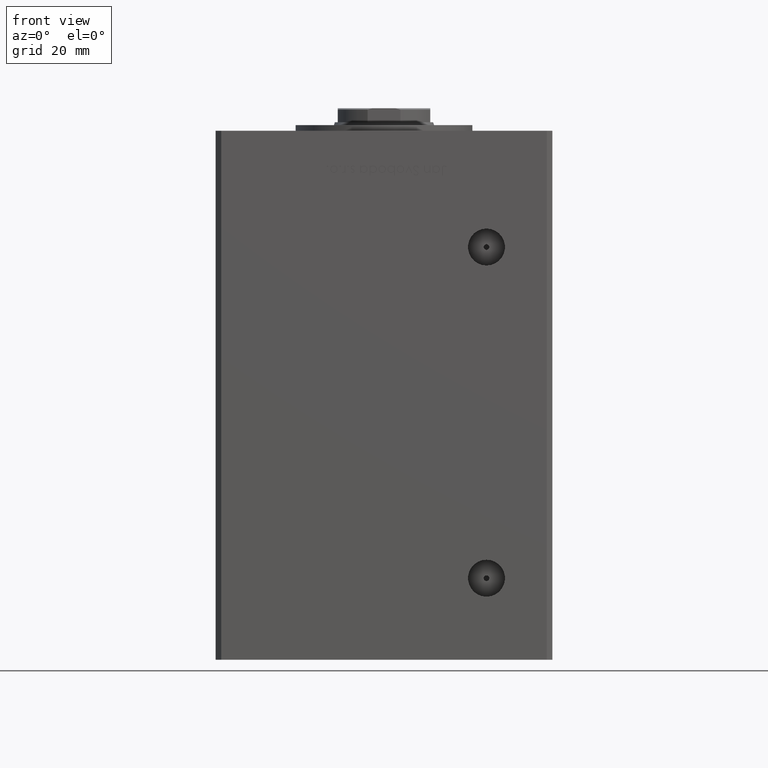
[diagram: clean part render]
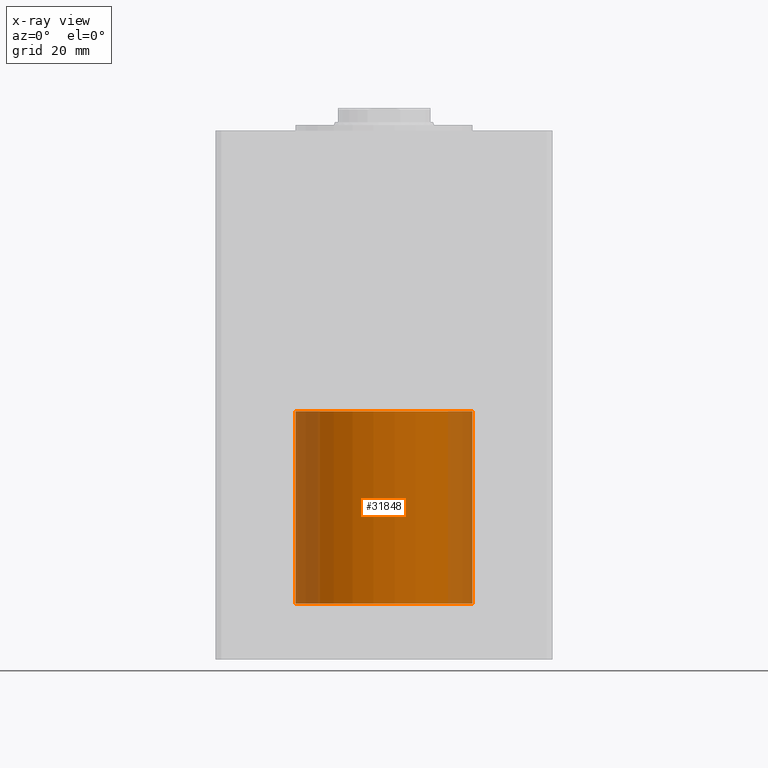
[diagram: x-ray — body ghosted, one internal face saturated and labeled with its STEP entity id]
A machine part, front view, then the same camera in x-ray: the body is ghosted and one INTERNAL B-rep face — a face not visible from any outside direction — is saturated and labeled: STEP entity #31848.
In plain terms, the highlighted cylindrical surface (partial cylindrical patch) has radius 31.5 mm, axis along (-0, -0, 1).
Its self-contained STEP definition (entity closure, byte-faithful):
#780 = DIRECTION ( 'NONE',  ( 1.000000000000000000, -9.892608450469889463E-18, -0.000000000000000000 ) ) ;
#4052 = ORIENTED_EDGE ( 'NONE', *, *, #27603, .F. ) ;
#4830 = CARTESIAN_POINT ( 'NONE',  ( 0.000000000000000000, -1.734723475976807094E-15, 0.000000000000000000 ) ) ;
#8795 = VERTEX_POINT ( 'NONE', #26235 ) ;
#9110 = CIRCLE ( 'NONE', #13557, 31.50000000000000000 ) ;
#10165 = VERTEX_POINT ( 'NONE', #54121 ) ;
#11508 = CARTESIAN_POINT ( 'NONE',  ( -3.116171661898015219E-16, -31.50000000000000000, 3.857637417314162689E-15 ) ) ;
#11702 = EDGE_CURVE ( 'NONE', #22864, #43605, #36838, .T. ) ;
#11832 = DIRECTION ( 'NONE',  ( 0.000000000000000000, 1.000000000000000000, 0.000000000000000000 ) ) ;
#12112 = CARTESIAN_POINT ( 'NONE',  ( -108.0000000000000000, -6.663217633260589769E-16, 0.000000000000000000 ) ) ;
#13085 = EDGE_CURVE ( 'NONE', #10165, #8795, #49481, .T. ) ;
#13557 = AXIS2_PLACEMENT_3D ( 'NONE', #12112, #29016, #11832 ) ;
#18149 = CYLINDRICAL_SURFACE ( 'NONE', #53429, 31.50000000000000000 ) ;
#21754 = CARTESIAN_POINT ( 'NONE',  ( -176.5000000000000000, 31.50000000000000000, 0.000000000000000000 ) ) ;
#21763 = DIRECTION ( 'NONE',  ( 1.000000000000000000, -9.892608450469889463E-18, -0.000000000000000000 ) ) ;
#21878 = CARTESIAN_POINT ( 'NONE',  ( -176.5000000000000000, 1.132191553112827178E-17, 0.000000000000000000 ) ) ;
#21971 = ORIENTED_EDGE ( 'NONE', *, *, #13085, .T. ) ;
#22864 = VERTEX_POINT ( 'NONE', #21754 ) ;
#26235 = CARTESIAN_POINT ( 'NONE',  ( -108.0000000000000000, -31.50000000000000000, 3.857637417314162689E-15 ) ) ;
#26308 = VECTOR ( 'NONE', #28405, 1000.000000000000000 ) ;
#26473 = FACE_OUTER_BOUND ( 'NONE', #51630, .T. ) ;
#26967 = CARTESIAN_POINT ( 'NONE',  ( -108.0000000000000000, 31.50000000000000000, 0.000000000000000000 ) ) ;
#27603 = EDGE_CURVE ( 'NONE', #43605, #8795, #9110, .T. ) ;
#28405 = DIRECTION ( 'NONE',  ( 1.000000000000000000, -9.892608450469889463E-18, -0.000000000000000000 ) ) ;
#29016 = DIRECTION ( 'NONE',  ( 1.000000000000000000, -9.892608450469889463E-18, -0.000000000000000000 ) ) ;
#30449 = DIRECTION ( 'NONE',  ( 0.000000000000000000, 1.000000000000000000, 0.000000000000000000 ) ) ;
#31848 = ADVANCED_FACE ( 'NONE', ( #26473 ), #18149, .T. ) ;
#33757 = DIRECTION ( 'NONE',  ( 1.000000000000000000, -9.892608450469889463E-18, -0.000000000000000000 ) ) ;
#34571 = ORIENTED_EDGE ( 'NONE', *, *, #49690, .T. ) ;
#36838 = LINE ( 'NONE', #50674, #43984 ) ;
#38394 = DIRECTION ( 'NONE',  ( 9.892608450469889463E-18, 1.000000000000000000, 0.000000000000000000 ) ) ;
#42392 = CIRCLE ( 'NONE', #46832, 31.50000000000000000 ) ;
#42878 = ORIENTED_EDGE ( 'NONE', *, *, #11702, .F. ) ;
#43605 = VERTEX_POINT ( 'NONE', #26967 ) ;
#43984 = VECTOR ( 'NONE', #33757, 1000.000000000000000 ) ;
#46832 = AXIS2_PLACEMENT_3D ( 'NONE', #21878, #780, #30449 ) ;
#49481 = LINE ( 'NONE', #11508, #26308 ) ;
#49690 = EDGE_CURVE ( 'NONE', #22864, #10165, #42392, .T. ) ;
#50674 = CARTESIAN_POINT ( 'NONE',  ( 3.116171661898015219E-16, 31.50000000000000000, 0.000000000000000000 ) ) ;
#51630 = EDGE_LOOP ( 'NONE', ( #34571, #21971, #4052, #42878 ) ) ;
#53429 = AXIS2_PLACEMENT_3D ( 'NONE', #4830, #21763, #38394 ) ;
#54121 = CARTESIAN_POINT ( 'NONE',  ( -176.5000000000000000, -31.50000000000000000, 3.857637417314162689E-15 ) ) ;